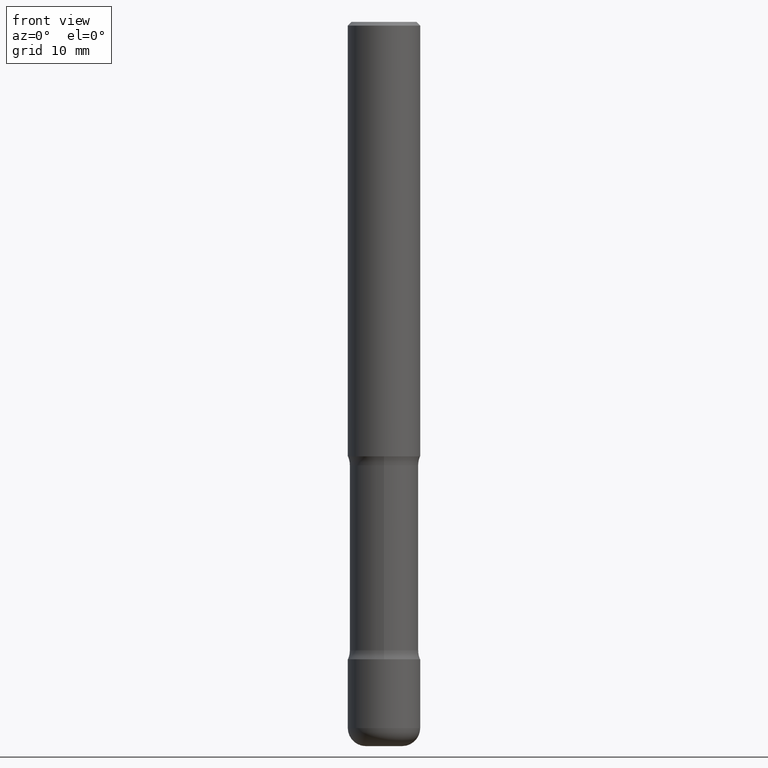
[diagram: clean part render]
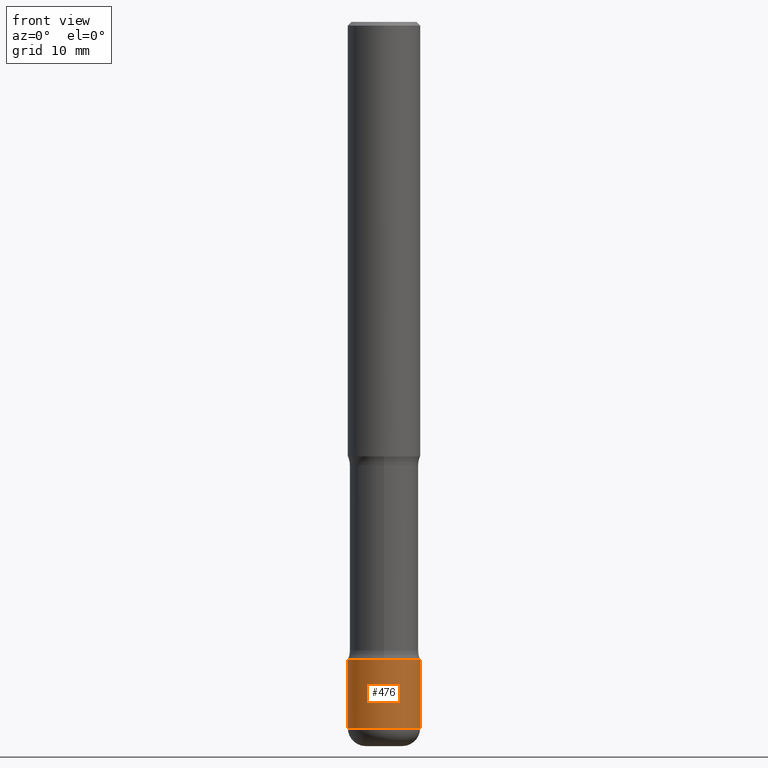
[diagram: same view with one face highlighted and labeled with its STEP entity id]
A machine part, front view. The second image highlights one B-rep face of the part: STEP entity #476.
In plain terms, the highlighted cylindrical surface (edge-blend (fillet) strip) has radius 5 mm, axis along (-0, 0, 1).
Its self-contained STEP definition (entity closure, byte-faithful):
#55 = VERTEX_POINT ( 'NONE', #459 ) ;
#61 = VERTEX_POINT ( 'NONE', #66 ) ;
#64 = CARTESIAN_POINT ( 'NONE',  ( 9.387176559422264284E-29, -1.340240026728329889E-14, -3.838600000000000012 ) ) ;
#66 = CARTESIAN_POINT ( 'NONE',  ( 0.1968500000000002470, -1.477699647038584208E-14, -3.838600000000000012 ) ) ;
#99 = ORIENTED_EDGE ( 'NONE', *, *, #501, .T. ) ;
#100 = LINE ( 'NONE', #362, #328 ) ;
#133 = ORIENTED_EDGE ( 'NONE', *, *, #158, .F. ) ;
#145 = AXIS2_PLACEMENT_3D ( 'NONE', #264, #230, #443 ) ;
#148 = DIRECTION ( 'NONE',  ( -2.445468806185136877E-29, 3.491481338843145188E-15, 1.000000000000000000 ) ) ;
#158 = EDGE_CURVE ( 'NONE', #55, #558, #203, .T. ) ;
#159 = EDGE_CURVE ( 'NONE', #252, #61, #431, .T. ) ;
#183 = CYLINDRICAL_SURFACE ( 'NONE', #145, 0.1968500000000001915 ) ;
#203 = CIRCLE ( 'NONE', #473, 0.1968500000000001360 ) ;
#230 = DIRECTION ( 'NONE',  ( -2.445468806185136597E-29, 3.491481338843145583E-15, 1.000000000000000000 ) ) ;
#252 = VERTEX_POINT ( 'NONE', #407 ) ;
#263 = ORIENTED_EDGE ( 'NONE', *, *, #469, .F. ) ;
#264 = CARTESIAN_POINT ( 'NONE',  ( 0.000000000000000000, 0.000000000000000000, 0.000000000000000000 ) ) ;
#278 = DIRECTION ( 'NONE',  ( -2.445468806185136597E-29, 3.491481338843145583E-15, 1.000000000000000000 ) ) ;
#309 = LINE ( 'NONE', #358, #354 ) ;
#324 = DIRECTION ( 'NONE',  ( 1.000000000000000000, -6.982962677686263555E-15, 0.000000000000000000 ) ) ;
#328 = VECTOR ( 'NONE', #404, 39.37007874015748143 ) ;
#331 = CARTESIAN_POINT ( 'NONE',  ( 0.1968500000000001360, -1.347118244965850850E-14, -3.464600000000001234 ) ) ;
#354 = VECTOR ( 'NONE', #148, 39.37007874015748143 ) ;
#358 = CARTESIAN_POINT ( 'NONE',  ( 0.1968500000000001915, -1.374596203102542989E-15, 9.598753983154309266E-30 ) ) ;
#362 = CARTESIAN_POINT ( 'NONE',  ( -0.1968500000000001915, 1.398703375343758577E-15, -9.682923725166790684E-30 ) ) ;
#373 = CARTESIAN_POINT ( 'NONE',  ( 8.472571225909027026E-29, -1.209658624655596689E-14, -3.464600000000001234 ) ) ;
#398 = ORIENTED_EDGE ( 'NONE', *, *, #159, .T. ) ;
#404 = DIRECTION ( 'NONE',  ( -2.445468806185136877E-29, 3.491481338843145188E-15, 1.000000000000000000 ) ) ;
#407 = CARTESIAN_POINT ( 'NONE',  ( -0.1968500000000002470, -1.200369689193953874E-14, -3.838600000000000012 ) ) ;
#431 = CIRCLE ( 'NONE', #462, 0.1968500000000001915 ) ;
#443 = DIRECTION ( 'NONE',  ( 1.000000000000000000, -6.982962677686266711E-15, 4.876176775795935793E-29 ) ) ;
#459 = CARTESIAN_POINT ( 'NONE',  ( -0.1968500000000001360, -1.135078988157587274E-14, -3.464600000000001234 ) ) ;
#462 = AXIS2_PLACEMENT_3D ( 'NONE', #64, #498, #496 ) ;
#469 = EDGE_CURVE ( 'NONE', #252, #55, #100, .T. ) ;
#473 = AXIS2_PLACEMENT_3D ( 'NONE', #373, #278, #324 ) ;
#476 = ADVANCED_FACE ( 'NONE', ( #515 ), #183, .T. ) ;
#496 = DIRECTION ( 'NONE',  ( 1.000000000000000000, -6.982962677686272233E-15, 0.000000000000000000 ) ) ;
#498 = DIRECTION ( 'NONE',  ( -2.445468806185136597E-29, 3.491481338843145583E-15, 1.000000000000000000 ) ) ;
#501 = EDGE_CURVE ( 'NONE', #61, #558, #309, .T. ) ;
#502 = EDGE_LOOP ( 'NONE', ( #263, #398, #99, #133 ) ) ;
#515 = FACE_OUTER_BOUND ( 'NONE', #502, .T. ) ;
#558 = VERTEX_POINT ( 'NONE', #331 ) ;